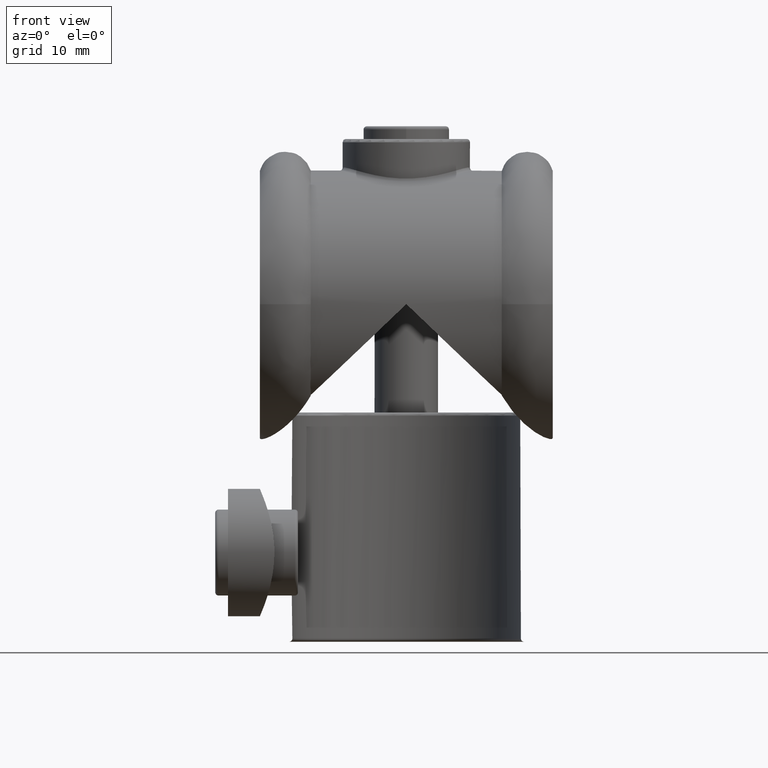
[diagram: clean part render]
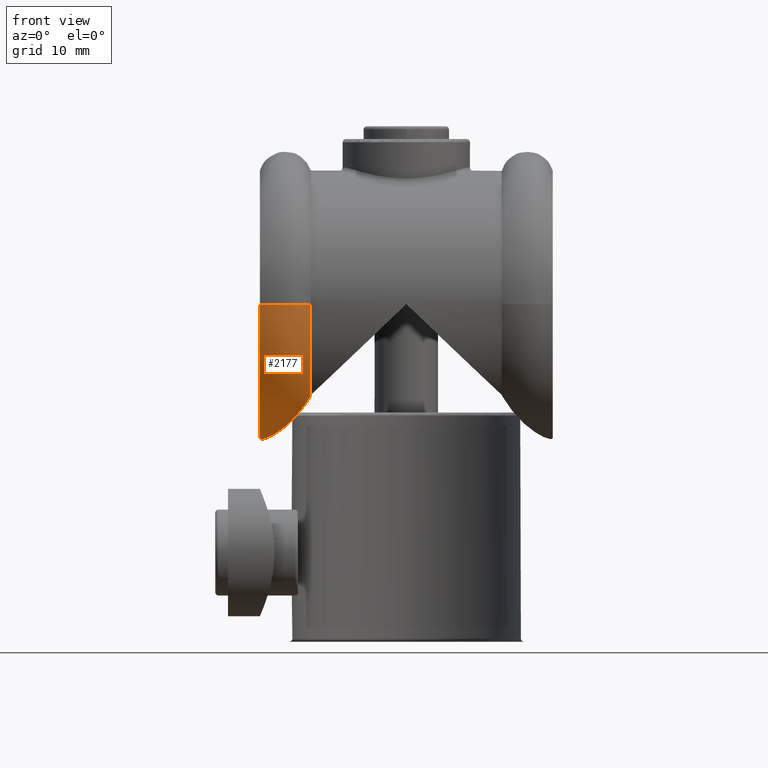
[diagram: same view with one face highlighted and labeled with its STEP entity id]
A machine part, front view. The second image highlights one B-rep face of the part: STEP entity #2177.
In plain terms, the highlighted face is a freeform B-spline surface patch.
Its self-contained STEP definition (entity closure, byte-faithful):
#145 = FACE_OUTER_BOUND ( 'NONE', #4255, .T. ) ;
#209 = CARTESIAN_POINT ( 'NONE',  ( -20.88910067706402884, 13.33519925797803118, -20.51689859007790773 ) ) ;
#229 = CARTESIAN_POINT ( 'NONE',  ( -19.65184976240200498, 11.04212913622020587, -19.69216025639745027 ) ) ;
#245 = CARTESIAN_POINT ( 'NONE',  ( -22.99999999999999289, 22.54408849405994175, -21.04362318675119070 ) ) ;
#270 = CARTESIAN_POINT ( 'NONE',  ( -21.86305228429824865, 15.84365596222704298, -20.97725759558550962 ) ) ;
#373 = CIRCLE ( 'NONE', #2966, 21.00000000000001066 ) ;
#473 = CARTESIAN_POINT ( 'NONE',  ( -15.00000000000000000, 0.000000000000000000, 0.000000000000000000 ) ) ;
#496 = CARTESIAN_POINT ( 'NONE',  ( -20.44680851063829508, -1.361702127659569994, 0.000000000000000000 ) ) ;
#542 = VERTEX_POINT ( 'NONE', #2525 ) ;
#677 = CARTESIAN_POINT ( 'NONE',  ( -21.71689695228631933, 15.41192270452302893, -20.91871878631630111 ) ) ;
#738 = CARTESIAN_POINT ( 'NONE',  ( -22.89125922740695174, 20.72016426783371301, -21.15569253911748859 ) ) ;
#744 = CARTESIAN_POINT ( 'NONE',  ( -15.00000000000000000, 20.99978296008176670, -0.09547580562472950116 ) ) ;
#819 = CARTESIAN_POINT ( 'NONE',  ( -23.00000000000000000, 22.99999999999975131, -21.00000000000001776 ) ) ;
#883 = CARTESIAN_POINT ( 'NONE',  ( -23.00000000000000000, 9.760998173992369686, -22.26675339738231330 ) ) ;
#897 = ORIENTED_EDGE ( 'NONE', *, *, #3815, .T. ) ;
#919 = CARTESIAN_POINT ( 'NONE',  ( -23.00000000000000000, -0.06046558884824312224, -13.29932996174512461 ) ) ;
#975 = ORIENTED_EDGE ( 'NONE', *, *, #1415, .T. ) ;
#1043 = DIRECTION ( 'NONE',  ( -0.000000000000000000, -0.000000000000000000, -1.000000000000000000 ) ) ;
#1047 =( BOUNDED_SURFACE ( )  B_SPLINE_SURFACE ( 3, 3, ( 
 ( #819, #883, #919, #4082 ),
 ( #5448, #1413, #3687, #496 ),
 ( #4493, #1342, #4061, #1386 ),
 ( #1849, #3213, #2728, #473 ) ),
 .UNSPECIFIED., .F., .F., .T. ) 
 B_SPLINE_SURFACE_WITH_KNOTS ( ( 4, 4 ),
 ( 4, 4 ),
 ( 0.000000000000000000, 1.000000000000000000 ),
 ( 0.000000000000000000, 1.000000000000000000 ),
 .UNSPECIFIED. ) 
 GEOMETRIC_REPRESENTATION_ITEM ( )  RATIONAL_B_SPLINE_SURFACE ( (
 ( 1.000000000000000000, 0.7806032636065228791, 0.7806032636065228791, 1.000000000000000000),
 ( 0.9215686274509803377, 0.7193794782256190956, 0.7193794782256190956, 0.9215686274509803377),
 ( 0.9215686274509803377, 0.7193794782256190956, 0.7193794782256190956, 0.9215686274509803377),
 ( 1.000000000000000000, 0.7806032636065228791, 0.7806032636065228791, 1.000000000000000000) ) ) 
 REPRESENTATION_ITEM ( '' )  SURFACE ( )  );
#1281 = AXIS2_PLACEMENT_3D ( 'NONE', #1945, #1043, #1492 ) ;
#1342 = CARTESIAN_POINT ( 'NONE',  ( -17.55319148936170492, 9.038785884620958555, -23.70770303611464414 ) ) ;
#1344 = EDGE_CURVE ( 'NONE', #4719, #5553, #4343, .T. ) ;
#1386 = CARTESIAN_POINT ( 'NONE',  ( -17.55319148936170492, -1.361702127659576655, 0.000000000000000000 ) ) ;
#1413 = CARTESIAN_POINT ( 'NONE',  ( -20.44680851063829508, 9.038785884620962108, -23.70770303611464058 ) ) ;
#1415 = EDGE_CURVE ( 'NONE', #4719, #542, #373, .T. ) ;
#1426 = CIRCLE ( 'NONE', #1917, 21.00000000000001066 ) ;
#1492 = DIRECTION ( 'NONE',  ( -1.000000000000000000, 0.000000000000000000, 0.000000000000000000 ) ) ;
#1610 = CARTESIAN_POINT ( 'NONE',  ( -22.72897280504663087, 19.36360134810891509, -21.19073223402898520 ) ) ;
#1655 = CARTESIAN_POINT ( 'NONE',  ( -15.42349704844682989, 5.928742548942724788, -15.06253255495104959 ) ) ;
#1676 = CARTESIAN_POINT ( 'NONE',  ( -16.57871840187152301, 7.054552258878326931, -16.66253121385069136 ) ) ;
#1849 = CARTESIAN_POINT ( 'NONE',  ( -15.00000000000000000, 22.99999999999975131, -21.00000000000002132 ) ) ;
#1917 = AXIS2_PLACEMENT_3D ( 'NONE', #3715, #2801, #5061 ) ;
#1945 = CARTESIAN_POINT ( 'NONE',  ( -19.00000000000000000, 7.500000000000000000, 0.000000000000000000 ) ) ;
#2043 = CARTESIAN_POINT ( 'NONE',  ( -15.87482971024964407, 6.343631496506849210, -15.73513796490987104 ) ) ;
#2105 = CARTESIAN_POINT ( 'NONE',  ( -21.24671325663810251, 14.14633991483619191, -20.70683517243430671 ) ) ;
#2125 = CARTESIAN_POINT ( 'NONE',  ( -18.74359610850552826, 9.644695581226375936, -18.96466436070703310 ) ) ;
#2177 = ADVANCED_FACE ( 'NONE', ( #145 ), #1047, .T. ) ;
#2354 = CIRCLE ( 'NONE', #1281, 8.499999999999996447 ) ;
#2519 = CARTESIAN_POINT ( 'NONE',  ( -17.30232060737631627, 7.842158261184271950, -17.52191114958530704 ) ) ;
#2525 = CARTESIAN_POINT ( 'NONE',  ( -15.00000000000000000, 0.000000000000000000, 0.000000000000000000 ) ) ;
#2728 = CARTESIAN_POINT ( 'NONE',  ( -14.99999999999999822, -0.06046558884824659863, -13.29932996174512461 ) ) ;
#2801 = DIRECTION ( 'NONE',  ( -1.000000000000000000, 0.000000000000000000, 0.000000000000000000 ) ) ;
#2803 = VERTEX_POINT ( 'NONE', #5183 ) ;
#2917 = CARTESIAN_POINT ( 'NONE',  ( -20.08618432463589798, 11.78701315636172708, -20.00400812449980492 ) ) ;
#2964 = CARTESIAN_POINT ( 'NONE',  ( -22.56788366336622786, 18.47100326098950518, -21.18093120941664154 ) ) ;
#2966 = AXIS2_PLACEMENT_3D ( 'NONE', #744, #3036, #3502 ) ;
#3036 = DIRECTION ( 'NONE',  ( -1.000000000000000000, 0.000000000000000000, 0.000000000000000000 ) ) ;
#3213 = CARTESIAN_POINT ( 'NONE',  ( -14.99999999999999822, 9.760998173992366134, -22.26675339738231330 ) ) ;
#3409 = CARTESIAN_POINT ( 'NONE',  ( -22.98645635812500743, 22.08816849256987425, -21.07950012510205795 ) ) ;
#3433 = CARTESIAN_POINT ( 'NONE',  ( -23.00000000000000000, 22.99999999999975131, -21.00000000000002132 ) ) ;
#3454 = CARTESIAN_POINT ( 'NONE',  ( -22.12855161406516658, 16.71243142092421508, -21.07076124373675086 ) ) ;
#3502 = DIRECTION ( 'NONE',  ( 0.000000000000000000, 0.000000000000000000, 1.000000000000000000 ) ) ;
#3687 = CARTESIAN_POINT ( 'NONE',  ( -20.44680851063829508, -1.422167716507816371, -14.16170677486646134 ) ) ;
#3715 = CARTESIAN_POINT ( 'NONE',  ( -23.00000000000000000, 20.99978296008176670, -0.09547580562472950116 ) ) ;
#3815 = EDGE_CURVE ( 'NONE', #542, #2803, #2354, .T. ) ;
#3851 = CARTESIAN_POINT ( 'NONE',  ( -22.24816920248464669, 17.14984929562373850, -21.10591360360305302 ) ) ;
#3914 = CARTESIAN_POINT ( 'NONE',  ( -22.93213335842039413, 21.17630259265676429, -21.13555470716832119 ) ) ;
#4061 = CARTESIAN_POINT ( 'NONE',  ( -17.55319148936170492, -1.422167716507823254, -14.16170677486646490 ) ) ;
#4082 = CARTESIAN_POINT ( 'NONE',  ( -23.00000000000000000, 3.469446951953614189E-15, 0.000000000000000000 ) ) ;
#4255 = EDGE_LOOP ( 'NONE', ( #4929, #975, #897, #4694 ) ) ;
#4294 = CARTESIAN_POINT ( 'NONE',  ( -18.26907267922080536, 9.006463075601498502, -18.53398451597185570 ) ) ;
#4343 = B_SPLINE_CURVE_WITH_KNOTS ( 'NONE', 3,
 ( #5161, #1655, #2043, #1676, #4775, #2519, #5697, #4294, #2125, #5608, #229, #2917, #5680, #209, #2105, #677, #270, #3454, #3851, #2964, #1610, #738, #3914, #3409, #245, #3433 ),
 .UNSPECIFIED., .F., .F.,
 ( 4, 2, 2, 2, 2, 2, 2, 2, 2, 2, 2, 2, 4 ),
 ( 8.673617379884035472E-19, 0.002726378750364648242, 0.004089568125546975616, 0.005452757500729304291, 0.008179136251093954701, 0.009542325626276278172, 0.01090551500145860164, 0.01363189375182324858, 0.01499508312700556512, 0.01635827250218788165, 0.01908465125255252165, 0.02044784062773483818, 0.02181103000291715124 ),
 .UNSPECIFIED. ) ;
#4493 = CARTESIAN_POINT ( 'NONE',  ( -17.55319148936170492, 23.13586143677302687, -22.35490750771798929 ) ) ;
#4565 = CARTESIAN_POINT ( 'NONE',  ( -15.00000000000000000, 5.564404225837298767, -14.33447448286443482 ) ) ;
#4694 = ORIENTED_EDGE ( 'NONE', *, *, #4973, .F. ) ;
#4719 = VERTEX_POINT ( 'NONE', #4565 ) ;
#4775 = CARTESIAN_POINT ( 'NONE',  ( -16.81781926309166408, 7.306325484023625805, -16.95805920816706092 ) ) ;
#4929 = ORIENTED_EDGE ( 'NONE', *, *, #1344, .F. ) ;
#4973 = EDGE_CURVE ( 'NONE', #5553, #2803, #1426, .T. ) ;
#5061 = DIRECTION ( 'NONE',  ( 0.000000000000000000, 0.000000000000000000, 1.000000000000000000 ) ) ;
#5161 = CARTESIAN_POINT ( 'NONE',  ( -15.00000000000000000, 5.564404225837298767, -14.33447448286443482 ) ) ;
#5183 = CARTESIAN_POINT ( 'NONE',  ( -23.00000000000000000, 1.734723475976807094E-15, 0.000000000000000000 ) ) ;
#5287 = CARTESIAN_POINT ( 'NONE',  ( -23.00000000000000000, 22.99999999999975131, -21.00000000000002132 ) ) ;
#5448 = CARTESIAN_POINT ( 'NONE',  ( -20.44680851063829508, 23.13586143677302687, -22.35490750771798574 ) ) ;
#5553 = VERTEX_POINT ( 'NONE', #5287 ) ;
#5608 = CARTESIAN_POINT ( 'NONE',  ( -19.42791399682947784, 10.68221628981001459, -19.52128617282470202 ) ) ;
#5680 = CARTESIAN_POINT ( 'NONE',  ( -20.29422879889080633, 12.16787174290540285, -20.14335347872912507 ) ) ;
#5697 = CARTESIAN_POINT ( 'NONE',  ( -17.54602794137105448, 8.124468865485420466, -17.78816502763866225 ) ) ;